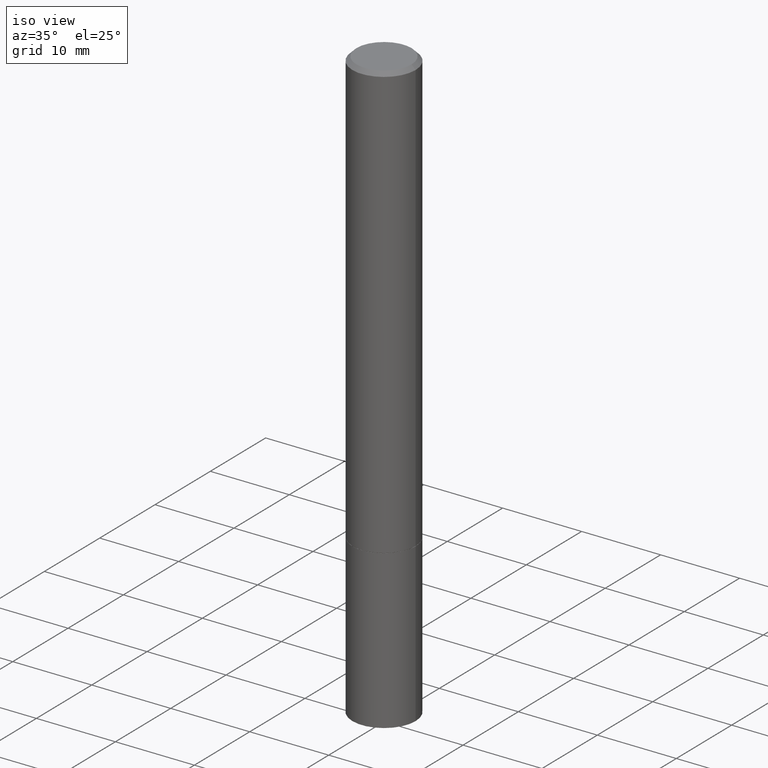
[diagram: clean part render]
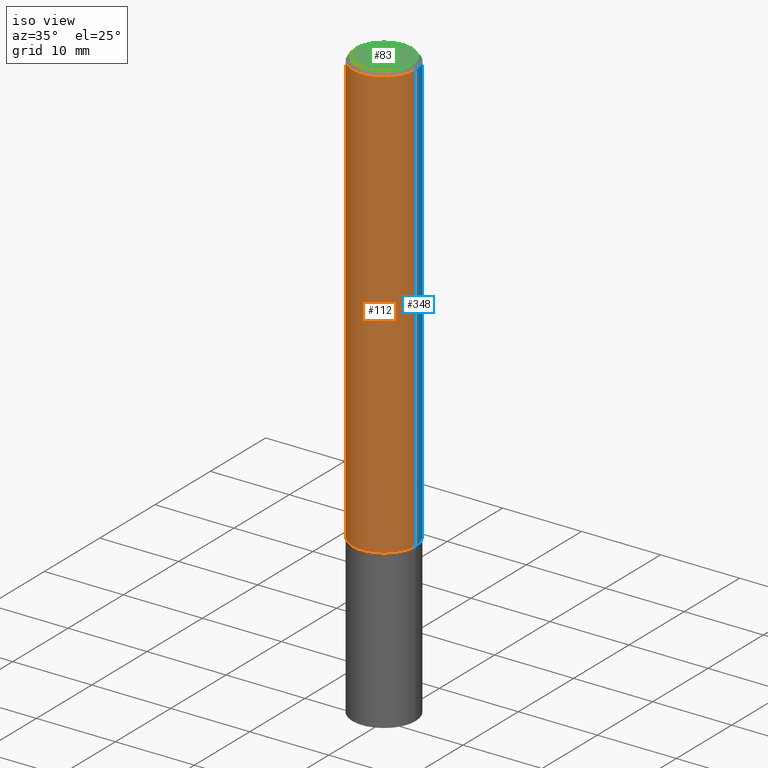
[diagram: same view with three faces highlighted in distinct colors, each labeled with its STEP entity id]
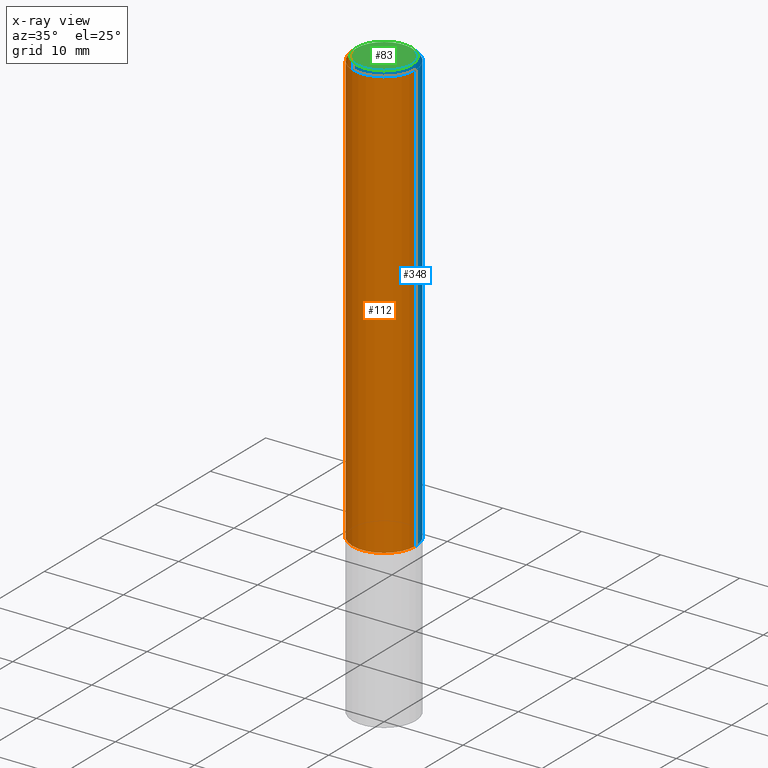
[diagram: x-ray of the same camera — body ghosted, the three highlighted faces saturated]
A machine part, iso view with three faces highlighted in distinct colors.
The next image is the same camera in x-ray (body ghosted, the three faces saturated) — at least one of them is partly hidden behind the body in this view.
Their STEP definitions:

[orange] entity #112 — the highlighted cylindrical surface (partial cylindrical patch) has radius 4.0005 mm, axis along (-0, 0, 1).
#6 = EDGE_CURVE ( 'NONE', #172, #357, #349, .T. ) ;
#10 = LINE ( 'NONE', #278, #262 ) ;
#30 = LINE ( 'NONE', #36, #169 ) ;
#34 = AXIS2_PLACEMENT_3D ( 'NONE', #124, #363, #217 ) ;
#35 = DIRECTION ( 'NONE',  ( 1.000000000000000000, -6.982962677686265922E-15, 4.876176775795935793E-29 ) ) ;
#36 = CARTESIAN_POINT ( 'NONE',  ( -0.1574999999999998346, 1.119104808822156617E-15, -7.747322767151467176E-30 ) ) ;
#48 = FACE_OUTER_BOUND ( 'NONE', #276, .T. ) ;
#69 = ORIENTED_EDGE ( 'NONE', *, *, #287, .T. ) ;
#79 = DIRECTION ( 'NONE',  ( 1.000000000000000000, -6.982962677686265922E-15, 0.000000000000000000 ) ) ;
#108 = EDGE_CURVE ( 'NONE', #150, #172, #30, .T. ) ;
#112 = ADVANCED_FACE ( 'NONE', ( #48 ), #307, .T. ) ;
#113 = VERTEX_POINT ( 'NONE', #197 ) ;
#124 = CARTESIAN_POINT ( 'NONE',  ( 5.292972684107108742E-29, -7.556962209792102838E-15, -2.164399999999999658 ) ) ;
#128 = EDGE_CURVE ( 'NONE', #113, #357, #10, .T. ) ;
#130 = CARTESIAN_POINT ( 'NONE',  ( 0.000000000000000000, 0.000000000000000000, 0.000000000000000000 ) ) ;
#134 = ORIENTED_EDGE ( 'NONE', *, *, #6, .F. ) ;
#148 = CARTESIAN_POINT ( 'NONE',  ( -0.1574999999999996958, 1.029986994958721618E-15, -0.02000000000000003858 ) ) ;
#150 = VERTEX_POINT ( 'NONE', #243 ) ;
#169 = VECTOR ( 'NONE', #284, 39.37007874015748143 ) ;
#172 = VERTEX_POINT ( 'NONE', #148 ) ;
#180 = CIRCLE ( 'NONE', #34, 0.1574999999999999178 ) ;
#197 = CARTESIAN_POINT ( 'NONE',  ( 0.1574999999999999178, -8.656778831527689529E-15, -2.164399999999999658 ) ) ;
#210 = AXIS2_PLACEMENT_3D ( 'NONE', #286, #309, #79 ) ;
#217 = DIRECTION ( 'NONE',  ( 1.000000000000000000, -6.982962677686265922E-15, 0.000000000000000000 ) ) ;
#232 = AXIS2_PLACEMENT_3D ( 'NONE', #130, #252, #35 ) ;
#243 = CARTESIAN_POINT ( 'NONE',  ( -0.1574999999999999178, -2.694291109462323887E-15, -2.164399999999999658 ) ) ;
#252 = DIRECTION ( 'NONE',  ( -2.445468806185136597E-29, 3.491481338843145583E-15, 1.000000000000000000 ) ) ;
#261 = CARTESIAN_POINT ( 'NONE',  ( 0.1574999999999996958, -1.150358061425877105E-15, -0.02000000000000003858 ) ) ;
#262 = VECTOR ( 'NONE', #308, 39.37007874015748143 ) ;
#270 = ORIENTED_EDGE ( 'NONE', *, *, #128, .T. ) ;
#276 = EDGE_LOOP ( 'NONE', ( #280, #69, #270, #134 ) ) ;
#278 = CARTESIAN_POINT ( 'NONE',  ( 0.1574999999999998346, -1.099816621735585705E-15, 7.679978421878591026E-30 ) ) ;
#280 = ORIENTED_EDGE ( 'NONE', *, *, #108, .F. ) ;
#284 = DIRECTION ( 'NONE',  ( -2.445468806185136877E-29, 3.491481338843145188E-15, 1.000000000000000000 ) ) ;
#286 = CARTESIAN_POINT ( 'NONE',  ( 4.890937612370282792E-31, -6.982962677686303935E-17, -0.02000000000000003858 ) ) ;
#287 = EDGE_CURVE ( 'NONE', #150, #113, #180, .T. ) ;
#307 = CYLINDRICAL_SURFACE ( 'NONE', #232, 0.1574999999999998346 ) ;
#308 = DIRECTION ( 'NONE',  ( -2.445468806185136877E-29, 3.491481338843145188E-15, 1.000000000000000000 ) ) ;
#309 = DIRECTION ( 'NONE',  ( -2.445468806185136597E-29, 3.491481338843145583E-15, 1.000000000000000000 ) ) ;
#349 = CIRCLE ( 'NONE', #210, 0.1574999999999996958 ) ;
#357 = VERTEX_POINT ( 'NONE', #261 ) ;
#363 = DIRECTION ( 'NONE',  ( -2.445468806185136597E-29, 3.491481338843145583E-15, 1.000000000000000000 ) ) ;

[blue] entity #348 — the highlighted cylindrical surface (partial cylindrical patch) has radius 4.0005 mm, axis along (-0, 0, 1).
#7 = AXIS2_PLACEMENT_3D ( 'NONE', #13, #110, #235 ) ;
#10 = LINE ( 'NONE', #278, #262 ) ;
#11 = DIRECTION ( 'NONE',  ( 1.000000000000000000, -6.982962677686265922E-15, 0.000000000000000000 ) ) ;
#13 = CARTESIAN_POINT ( 'NONE',  ( 0.000000000000000000, 0.000000000000000000, 0.000000000000000000 ) ) ;
#21 = DIRECTION ( 'NONE',  ( -2.445468806185136597E-29, 3.491481338843145583E-15, 1.000000000000000000 ) ) ;
#27 = EDGE_CURVE ( 'NONE', #113, #150, #318, .T. ) ;
#30 = LINE ( 'NONE', #36, #169 ) ;
#36 = CARTESIAN_POINT ( 'NONE',  ( -0.1574999999999998346, 1.119104808822156617E-15, -7.747322767151467176E-30 ) ) ;
#47 = EDGE_LOOP ( 'NONE', ( #272, #361, #365, #76 ) ) ;
#57 = CARTESIAN_POINT ( 'NONE',  ( 5.292972684107108742E-29, -7.556962209792102838E-15, -2.164399999999999658 ) ) ;
#76 = ORIENTED_EDGE ( 'NONE', *, *, #128, .F. ) ;
#108 = EDGE_CURVE ( 'NONE', #150, #172, #30, .T. ) ;
#110 = DIRECTION ( 'NONE',  ( -2.445468806185136597E-29, 3.491481338843145583E-15, 1.000000000000000000 ) ) ;
#113 = VERTEX_POINT ( 'NONE', #197 ) ;
#128 = EDGE_CURVE ( 'NONE', #113, #357, #10, .T. ) ;
#148 = CARTESIAN_POINT ( 'NONE',  ( -0.1574999999999996958, 1.029986994958721618E-15, -0.02000000000000003858 ) ) ;
#150 = VERTEX_POINT ( 'NONE', #243 ) ;
#158 = EDGE_CURVE ( 'NONE', #357, #172, #285, .T. ) ;
#169 = VECTOR ( 'NONE', #284, 39.37007874015748143 ) ;
#172 = VERTEX_POINT ( 'NONE', #148 ) ;
#197 = CARTESIAN_POINT ( 'NONE',  ( 0.1574999999999999178, -8.656778831527689529E-15, -2.164399999999999658 ) ) ;
#201 = AXIS2_PLACEMENT_3D ( 'NONE', #57, #305, #11 ) ;
#234 = FACE_OUTER_BOUND ( 'NONE', #47, .T. ) ;
#235 = DIRECTION ( 'NONE',  ( 1.000000000000000000, -6.982962677686265922E-15, 4.876176775795935793E-29 ) ) ;
#243 = CARTESIAN_POINT ( 'NONE',  ( -0.1574999999999999178, -2.694291109462323887E-15, -2.164399999999999658 ) ) ;
#261 = CARTESIAN_POINT ( 'NONE',  ( 0.1574999999999996958, -1.150358061425877105E-15, -0.02000000000000003858 ) ) ;
#262 = VECTOR ( 'NONE', #308, 39.37007874015748143 ) ;
#272 = ORIENTED_EDGE ( 'NONE', *, *, #27, .T. ) ;
#278 = CARTESIAN_POINT ( 'NONE',  ( 0.1574999999999998346, -1.099816621735585705E-15, 7.679978421878591026E-30 ) ) ;
#284 = DIRECTION ( 'NONE',  ( -2.445468806185136877E-29, 3.491481338843145188E-15, 1.000000000000000000 ) ) ;
#285 = CIRCLE ( 'NONE', #350, 0.1574999999999996958 ) ;
#295 = CARTESIAN_POINT ( 'NONE',  ( 4.890937612370282792E-31, -6.982962677686303935E-17, -0.02000000000000003858 ) ) ;
#305 = DIRECTION ( 'NONE',  ( -2.445468806185136597E-29, 3.491481338843145583E-15, 1.000000000000000000 ) ) ;
#308 = DIRECTION ( 'NONE',  ( -2.445468806185136877E-29, 3.491481338843145188E-15, 1.000000000000000000 ) ) ;
#315 = CYLINDRICAL_SURFACE ( 'NONE', #7, 0.1574999999999998346 ) ;
#318 = CIRCLE ( 'NONE', #201, 0.1574999999999999178 ) ;
#334 = DIRECTION ( 'NONE',  ( 1.000000000000000000, -6.982962677686265922E-15, 0.000000000000000000 ) ) ;
#348 = ADVANCED_FACE ( 'NONE', ( #234 ), #315, .T. ) ;
#350 = AXIS2_PLACEMENT_3D ( 'NONE', #295, #21, #334 ) ;
#357 = VERTEX_POINT ( 'NONE', #261 ) ;
#361 = ORIENTED_EDGE ( 'NONE', *, *, #108, .T. ) ;
#365 = ORIENTED_EDGE ( 'NONE', *, *, #158, .F. ) ;

[green] entity #83 — the highlighted planar face has unit normal (0, -0, -1).
#5 = CIRCLE ( 'NONE', #336, 0.1374999999999997058 ) ;
#29 = ORIENTED_EDGE ( 'NONE', *, *, #179, .T. ) ;
#49 = AXIS2_PLACEMENT_3D ( 'NONE', #50, #138, #281 ) ;
#50 = CARTESIAN_POINT ( 'NONE',  ( 9.601573681818595033E-16, 0.1374999999999997058, -4.779444278458812147E-16 ) ) ;
#62 = EDGE_CURVE ( 'NONE', #333, #81, #5, .T. ) ;
#81 = VERTEX_POINT ( 'NONE', #194 ) ;
#83 = ADVANCED_FACE ( 'NONE', ( #250 ), #105, .F. ) ;
#89 = AXIS2_PLACEMENT_3D ( 'NONE', #184, #193, #359 ) ;
#105 = PLANE ( 'NONE',  #49 ) ;
#138 = DIRECTION ( 'NONE',  ( 2.438088387897960049E-29, -3.491481338843145188E-15, -1.000000000000000000 ) ) ;
#160 = CIRCLE ( 'NONE', #89, 0.1374999999999997058 ) ;
#170 = DIRECTION ( 'NONE',  ( 1.000000000000000000, -6.982962677686265922E-15, 4.876173381029110692E-29 ) ) ;
#171 = CARTESIAN_POINT ( 'NONE',  ( -0.1374999999999997058, 9.950721815702905608E-16, 4.268512490093574228E-18 ) ) ;
#179 = EDGE_CURVE ( 'NONE', #81, #333, #160, .T. ) ;
#184 = CARTESIAN_POINT ( 'NONE',  ( -1.043851414335219820E-46, 1.490343170380447200E-32, 4.268512490100411279E-18 ) ) ;
#193 = DIRECTION ( 'NONE',  ( -2.445468806185136597E-29, 3.491481338843145583E-15, 1.000000000000000000 ) ) ;
#194 = CARTESIAN_POINT ( 'NONE',  ( 0.1374999999999997058, -1.046838268059730322E-15, 4.268512490107428597E-18 ) ) ;
#224 = CARTESIAN_POINT ( 'NONE',  ( -1.043851414335219820E-46, 1.490343170380447200E-32, 4.268512490100411279E-18 ) ) ;
#249 = ORIENTED_EDGE ( 'NONE', *, *, #62, .T. ) ;
#250 = FACE_OUTER_BOUND ( 'NONE', #304, .T. ) ;
#281 = DIRECTION ( 'NONE',  ( -1.000000000000000000, 6.982962677686265922E-15, -4.876176775795935793E-29 ) ) ;
#304 = EDGE_LOOP ( 'NONE', ( #249, #29 ) ) ;
#333 = VERTEX_POINT ( 'NONE', #171 ) ;
#336 = AXIS2_PLACEMENT_3D ( 'NONE', #224, #343, #170 ) ;
#343 = DIRECTION ( 'NONE',  ( -2.445468806185136597E-29, 3.491481338843145583E-15, 1.000000000000000000 ) ) ;
#359 = DIRECTION ( 'NONE',  ( 1.000000000000000000, -6.982962677686265922E-15, 4.876173381029110692E-29 ) ) ;